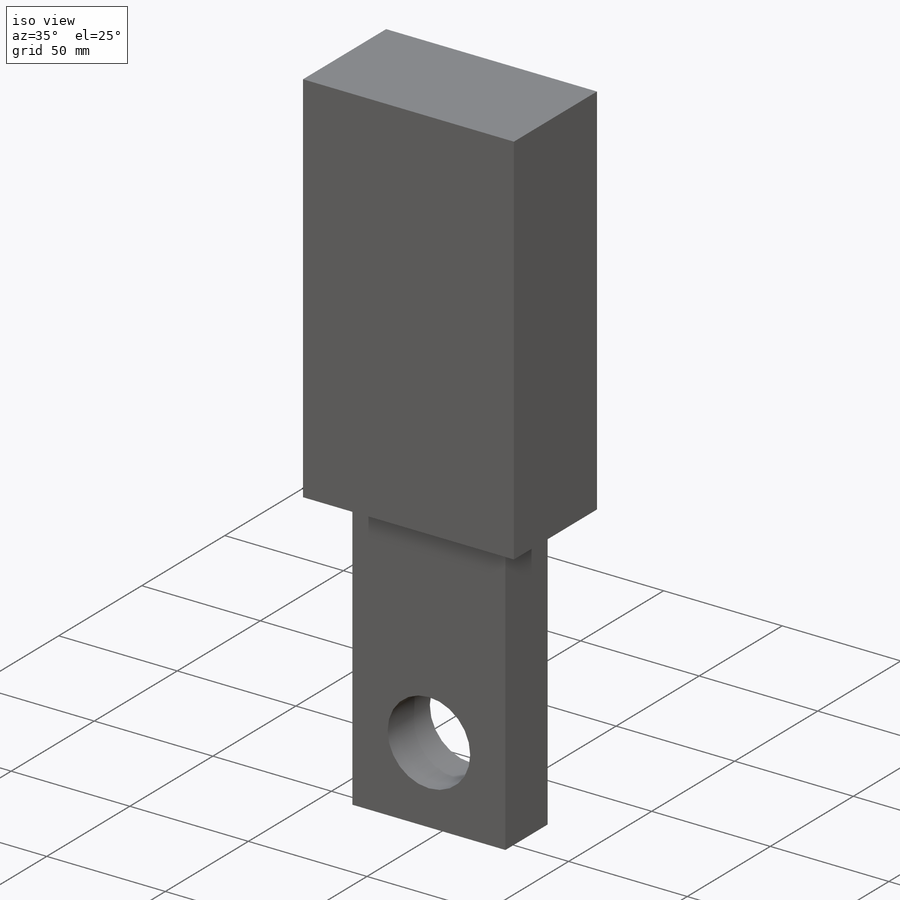
[diagram: iso view]
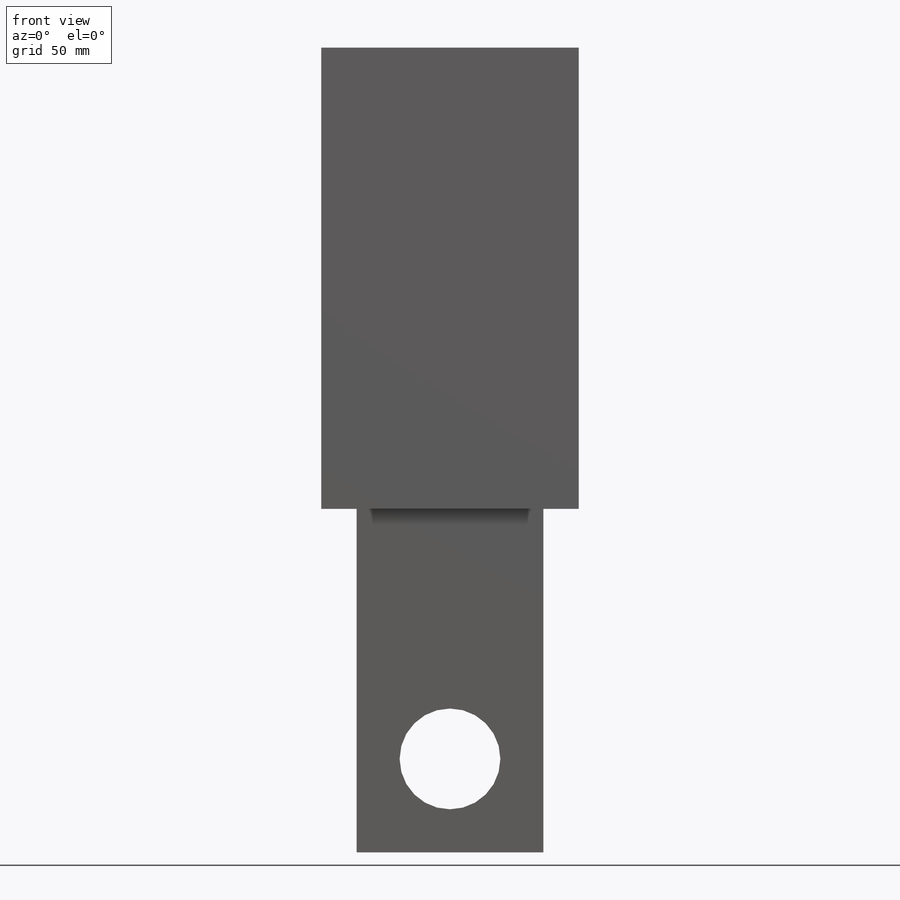
[diagram: front view]
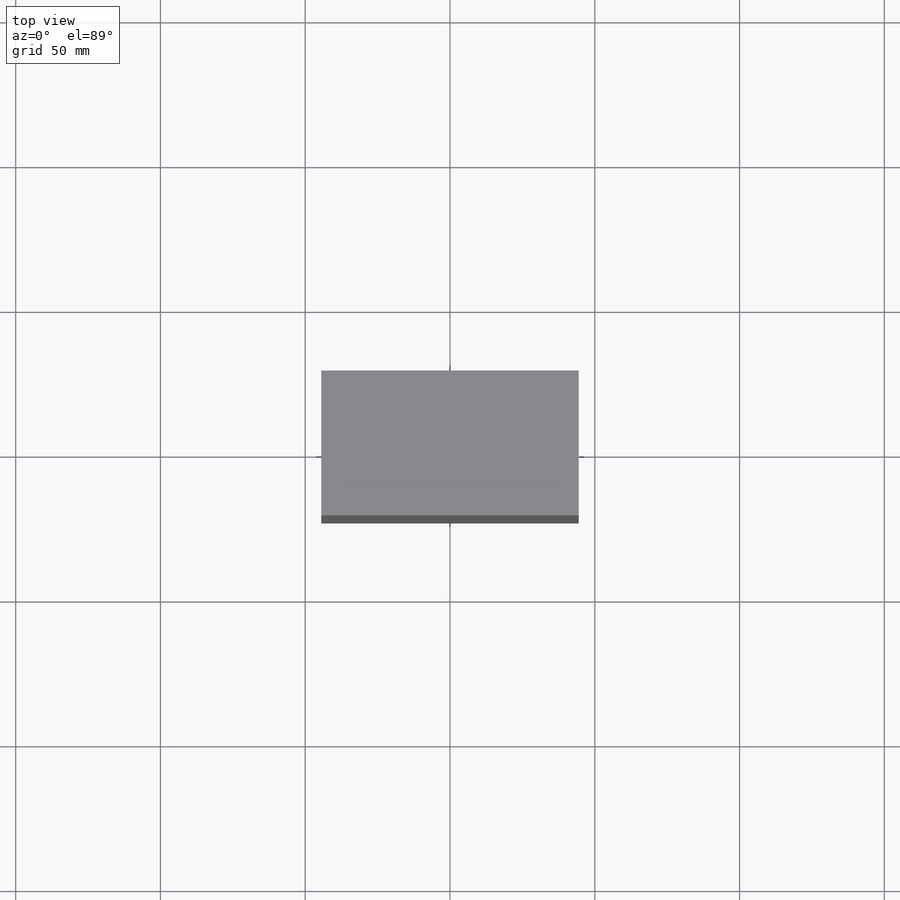
[diagram: top view]
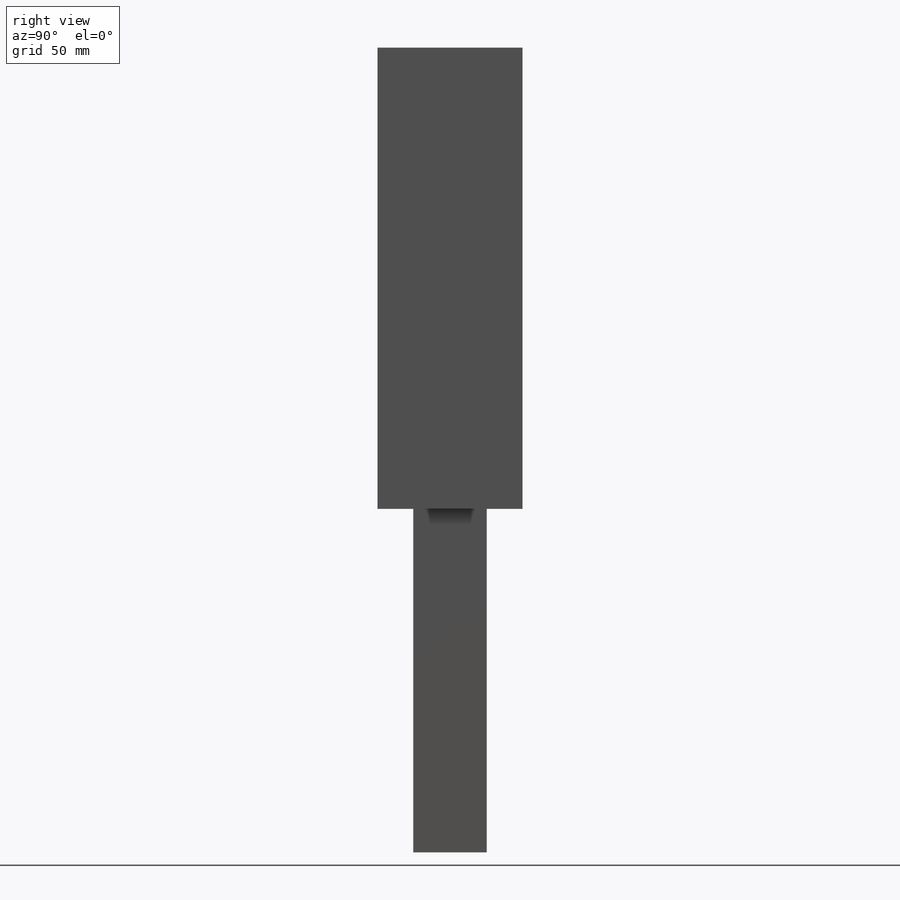
[diagram: right view]
SOLIDWORKS PART (.sldprt)
format: sldprt  version: not decoded by parser v0  size: 96,768 bytes
history: native  units: mm
features: sketch x4, extrude x2, material x1, cut_extrude x1, plane x1 (+11 scaffold rows collapsed)
feature tree (20):
  scaffold x11  (default folders/planes/origin — collapsed)
  material  "Material <not specified>"
  sketch  "Sketch1"  dims[D1=64.516mm D2=25.4mm]
  extrude  "Extrude2"  Depth=59.309mm
  sketch  "Sketch2"  dims[D2=34.798mm D1=32.258mm]
  cut_extrude  "Cut-Extrude1"  [1 undecoded]
  plane  "Plane1"  Offset=0mm
  sketch  "Sketch3"  dims[D1=88.9mm]
  extrude  "Extrude3"  Depth=159.258mm
  sketch  "Sketch4"
decode coverage: 5 of 7 modeling features carry decoded parameters
note: 1 parameter value undecoded
note: suppression state not decoded; provenance and decode notes live in map.json
